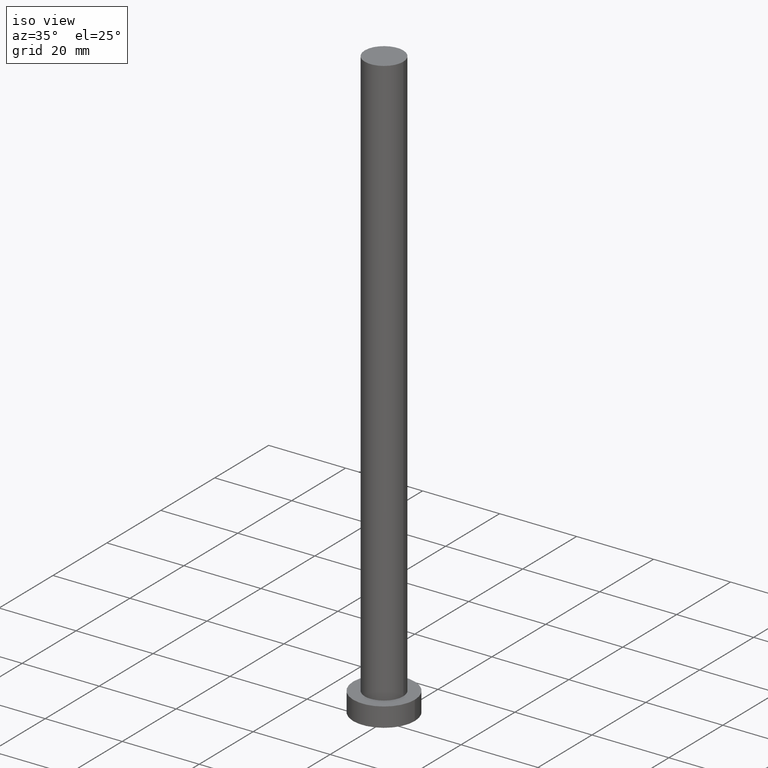
[diagram: clean part render]
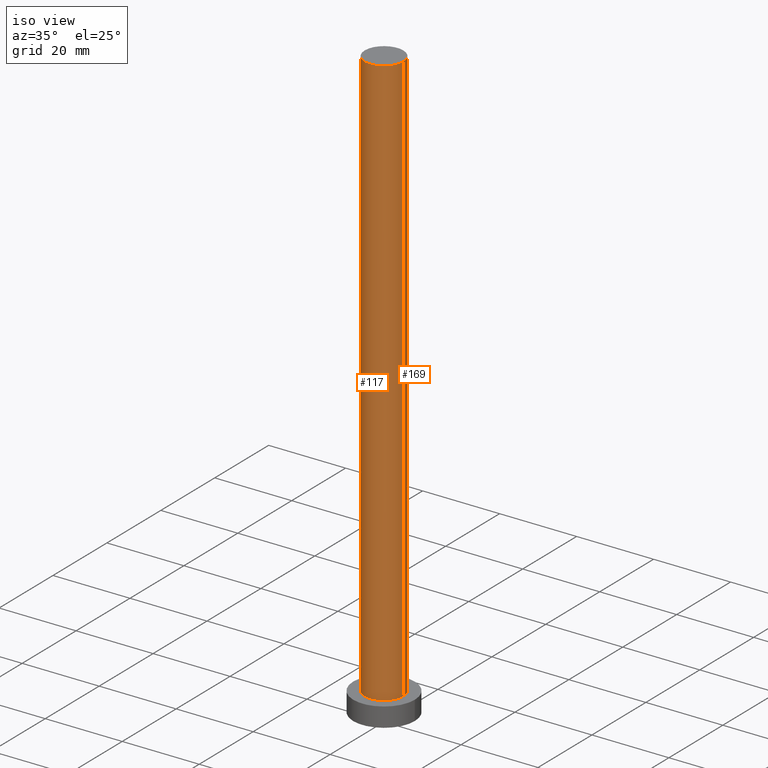
[diagram: same view with one multi-face feature highlighted, each face labeled with its STEP entity id]
A machine part, iso view. The highlighted faces form ONE feature: a constant-radius fillet chain: 2 tangent blend faces with common blend radius 5 mm. The faces share edges in the B-rep.
Their STEP definitions:
[1] entity #117 (Cylinder):
#15 = EDGE_CURVE ( 'NONE', #75, #16, #115, .T. ) ;
#16 = VERTEX_POINT ( 'NONE', #155 ) ;
#19 = CARTESIAN_POINT ( 'NONE',  ( 0.000000000000000000, 0.000000000000000000, 154.0000000000000000 ) ) ;
#20 = ORIENTED_EDGE ( 'NONE', *, *, #124, .F. ) ;
#30 = CARTESIAN_POINT ( 'NONE',  ( 5.000000000000000888, 6.123233995736767268E-16, 154.0000000000000000 ) ) ;
#39 = DIRECTION ( 'NONE',  ( 0.000000000000000000, 0.000000000000000000, 1.000000000000000000 ) ) ;
#42 = VERTEX_POINT ( 'NONE', #165 ) ;
#54 = EDGE_CURVE ( 'NONE', #151, #42, #150, .T. ) ;
#57 = ORIENTED_EDGE ( 'NONE', *, *, #54, .F. ) ;
#68 = VECTOR ( 'NONE', #79, 1000.000000000000000 ) ;
#75 = VERTEX_POINT ( 'NONE', #94 ) ;
#79 = DIRECTION ( 'NONE',  ( -0.000000000000000000, -0.000000000000000000, -1.000000000000000000 ) ) ;
#81 = DIRECTION ( 'NONE',  ( 0.000000000000000000, 0.000000000000000000, 1.000000000000000000 ) ) ;
#88 = EDGE_CURVE ( 'NONE', #16, #42, #143, .T. ) ;
#94 = CARTESIAN_POINT ( 'NONE',  ( -5.000000000000000888, 0.000000000000000000, 154.0000000000000000 ) ) ;
#101 = CYLINDRICAL_SURFACE ( 'NONE', #210, 5.000000000000000888 ) ;
#115 = LINE ( 'NONE', #167, #205 ) ;
#116 = DIRECTION ( 'NONE',  ( 1.000000000000000000, 0.000000000000000000, 0.000000000000000000 ) ) ;
#117 = ADVANCED_FACE ( 'NONE', ( #191 ), #101, .T. ) ;
#124 = EDGE_CURVE ( 'NONE', #75, #151, #242, .T. ) ;
#129 = ORIENTED_EDGE ( 'NONE', *, *, #88, .T. ) ;
#131 = EDGE_LOOP ( 'NONE', ( #57, #20, #187, #129 ) ) ;
#135 = CARTESIAN_POINT ( 'NONE',  ( 5.000000000000000888, 6.123233995736767268E-16, 154.0000000000000000 ) ) ;
#143 = CIRCLE ( 'NONE', #188, 5.000000000000000888 ) ;
#150 = LINE ( 'NONE', #135, #68 ) ;
#151 = VERTEX_POINT ( 'NONE', #30 ) ;
#152 = DIRECTION ( 'NONE',  ( 1.000000000000000000, 0.000000000000000000, 0.000000000000000000 ) ) ;
#155 = CARTESIAN_POINT ( 'NONE',  ( -5.000000000000000888, 0.000000000000000000, 5.000000000000000000 ) ) ;
#165 = CARTESIAN_POINT ( 'NONE',  ( 5.000000000000000888, 6.123233995736767268E-16, 5.000000000000000000 ) ) ;
#166 = DIRECTION ( 'NONE',  ( -1.000000000000000000, 0.000000000000000000, 0.000000000000000000 ) ) ;
#167 = CARTESIAN_POINT ( 'NONE',  ( -5.000000000000000888, 0.000000000000000000, 154.0000000000000000 ) ) ;
#168 = DIRECTION ( 'NONE',  ( -0.000000000000000000, -0.000000000000000000, -1.000000000000000000 ) ) ;
#187 = ORIENTED_EDGE ( 'NONE', *, *, #15, .T. ) ;
#188 = AXIS2_PLACEMENT_3D ( 'NONE', #214, #39, #116 ) ;
#191 = FACE_OUTER_BOUND ( 'NONE', #131, .T. ) ;
#192 = DIRECTION ( 'NONE',  ( -0.000000000000000000, -0.000000000000000000, -1.000000000000000000 ) ) ;
#199 = AXIS2_PLACEMENT_3D ( 'NONE', #254, #81, #152 ) ;
#205 = VECTOR ( 'NONE', #192, 1000.000000000000000 ) ;
#210 = AXIS2_PLACEMENT_3D ( 'NONE', #19, #168, #166 ) ;
#214 = CARTESIAN_POINT ( 'NONE',  ( 0.000000000000000000, 0.000000000000000000, 5.000000000000000000 ) ) ;
#242 = CIRCLE ( 'NONE', #199, 5.000000000000000888 ) ;
#254 = CARTESIAN_POINT ( 'NONE',  ( 0.000000000000000000, 0.000000000000000000, 154.0000000000000000 ) ) ;
[2] entity #169 (Cylinder):
#3 = DIRECTION ( 'NONE',  ( -1.000000000000000000, 0.000000000000000000, 0.000000000000000000 ) ) ;
#7 = CARTESIAN_POINT ( 'NONE',  ( 0.000000000000000000, 0.000000000000000000, 154.0000000000000000 ) ) ;
#15 = EDGE_CURVE ( 'NONE', #75, #16, #115, .T. ) ;
#16 = VERTEX_POINT ( 'NONE', #155 ) ;
#18 = AXIS2_PLACEMENT_3D ( 'NONE', #47, #121, #3 ) ;
#30 = CARTESIAN_POINT ( 'NONE',  ( 5.000000000000000888, 6.123233995736767268E-16, 154.0000000000000000 ) ) ;
#37 = EDGE_LOOP ( 'NONE', ( #226, #161, #82, #215 ) ) ;
#42 = VERTEX_POINT ( 'NONE', #165 ) ;
#47 = CARTESIAN_POINT ( 'NONE',  ( 0.000000000000000000, 0.000000000000000000, 154.0000000000000000 ) ) ;
#49 = CIRCLE ( 'NONE', #225, 5.000000000000000888 ) ;
#54 = EDGE_CURVE ( 'NONE', #151, #42, #150, .T. ) ;
#63 = CYLINDRICAL_SURFACE ( 'NONE', #18, 5.000000000000000888 ) ;
#68 = VECTOR ( 'NONE', #79, 1000.000000000000000 ) ;
#73 = CIRCLE ( 'NONE', #103, 5.000000000000000888 ) ;
#75 = VERTEX_POINT ( 'NONE', #94 ) ;
#79 = DIRECTION ( 'NONE',  ( -0.000000000000000000, -0.000000000000000000, -1.000000000000000000 ) ) ;
#82 = ORIENTED_EDGE ( 'NONE', *, *, #248, .T. ) ;
#94 = CARTESIAN_POINT ( 'NONE',  ( -5.000000000000000888, 0.000000000000000000, 154.0000000000000000 ) ) ;
#102 = DIRECTION ( 'NONE',  ( 1.000000000000000000, 0.000000000000000000, 0.000000000000000000 ) ) ;
#103 = AXIS2_PLACEMENT_3D ( 'NONE', #7, #157, #141 ) ;
#115 = LINE ( 'NONE', #167, #205 ) ;
#118 = CARTESIAN_POINT ( 'NONE',  ( 0.000000000000000000, 0.000000000000000000, 5.000000000000000000 ) ) ;
#121 = DIRECTION ( 'NONE',  ( -0.000000000000000000, -0.000000000000000000, -1.000000000000000000 ) ) ;
#135 = CARTESIAN_POINT ( 'NONE',  ( 5.000000000000000888, 6.123233995736767268E-16, 154.0000000000000000 ) ) ;
#141 = DIRECTION ( 'NONE',  ( 1.000000000000000000, 0.000000000000000000, 0.000000000000000000 ) ) ;
#146 = EDGE_CURVE ( 'NONE', #151, #75, #73, .T. ) ;
#150 = LINE ( 'NONE', #135, #68 ) ;
#151 = VERTEX_POINT ( 'NONE', #30 ) ;
#155 = CARTESIAN_POINT ( 'NONE',  ( -5.000000000000000888, 0.000000000000000000, 5.000000000000000000 ) ) ;
#157 = DIRECTION ( 'NONE',  ( 0.000000000000000000, 0.000000000000000000, 1.000000000000000000 ) ) ;
#158 = FACE_OUTER_BOUND ( 'NONE', #37, .T. ) ;
#161 = ORIENTED_EDGE ( 'NONE', *, *, #54, .T. ) ;
#165 = CARTESIAN_POINT ( 'NONE',  ( 5.000000000000000888, 6.123233995736767268E-16, 5.000000000000000000 ) ) ;
#167 = CARTESIAN_POINT ( 'NONE',  ( -5.000000000000000888, 0.000000000000000000, 154.0000000000000000 ) ) ;
#169 = ADVANCED_FACE ( 'NONE', ( #158 ), #63, .T. ) ;
#192 = DIRECTION ( 'NONE',  ( -0.000000000000000000, -0.000000000000000000, -1.000000000000000000 ) ) ;
#196 = DIRECTION ( 'NONE',  ( 0.000000000000000000, 0.000000000000000000, 1.000000000000000000 ) ) ;
#205 = VECTOR ( 'NONE', #192, 1000.000000000000000 ) ;
#215 = ORIENTED_EDGE ( 'NONE', *, *, #15, .F. ) ;
#225 = AXIS2_PLACEMENT_3D ( 'NONE', #118, #196, #102 ) ;
#226 = ORIENTED_EDGE ( 'NONE', *, *, #146, .F. ) ;
#248 = EDGE_CURVE ( 'NONE', #42, #16, #49, .T. ) ;